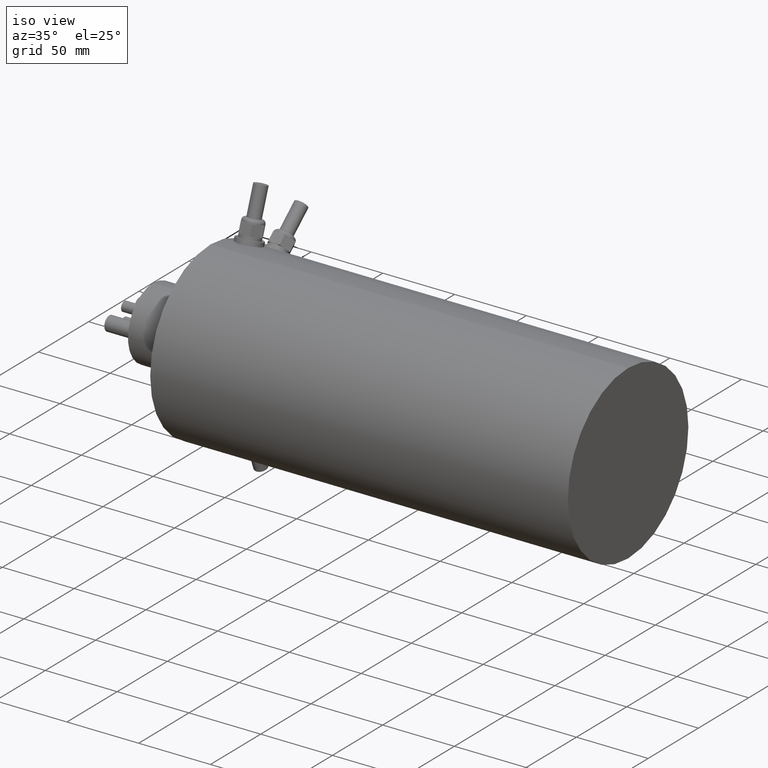
[diagram: clean part render]
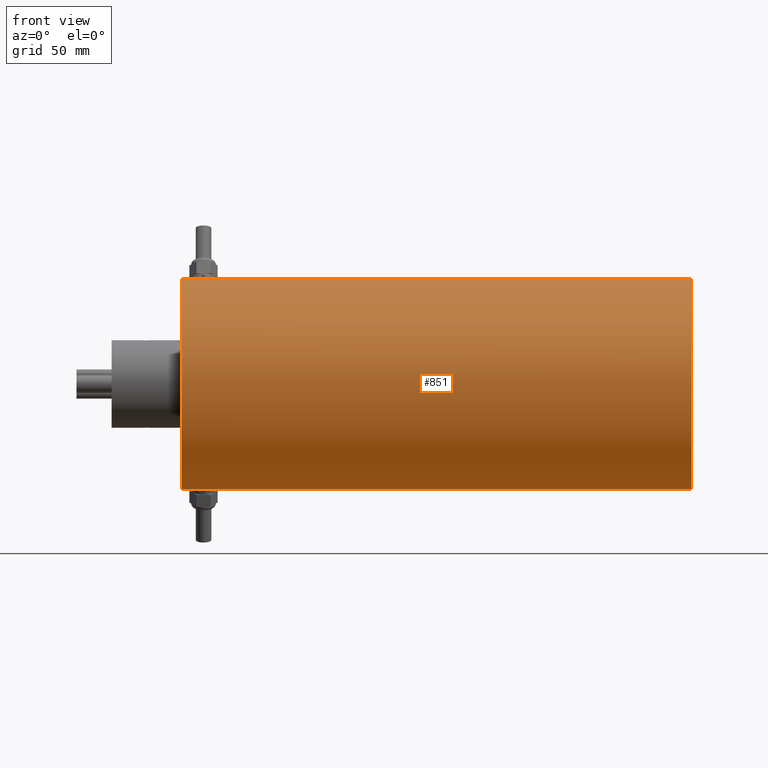
[diagram: tour spotlight — one face highlighted and labeled with its STEP entity id]
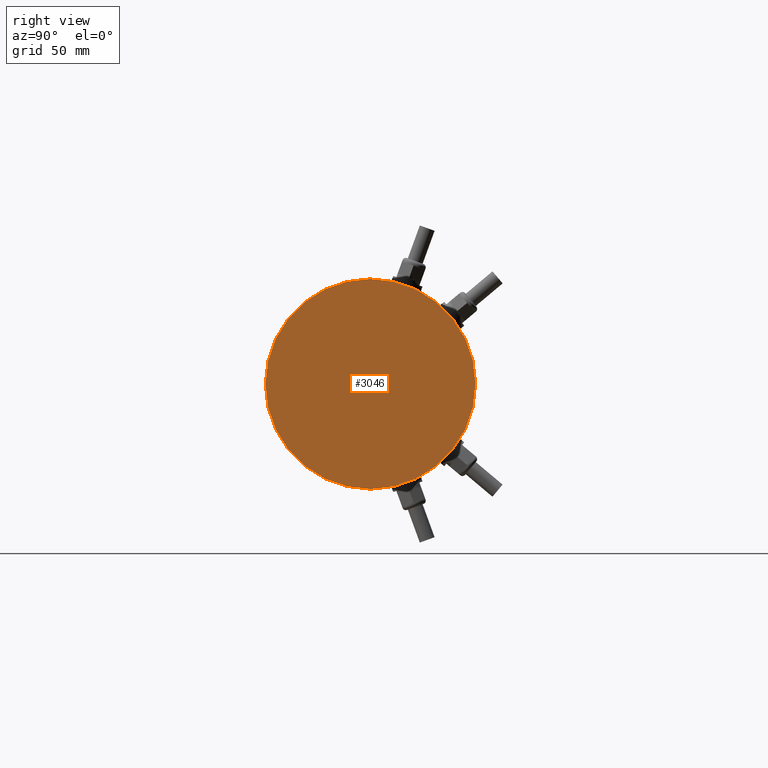
[diagram: tour spotlight — one face highlighted and labeled with its STEP entity id]
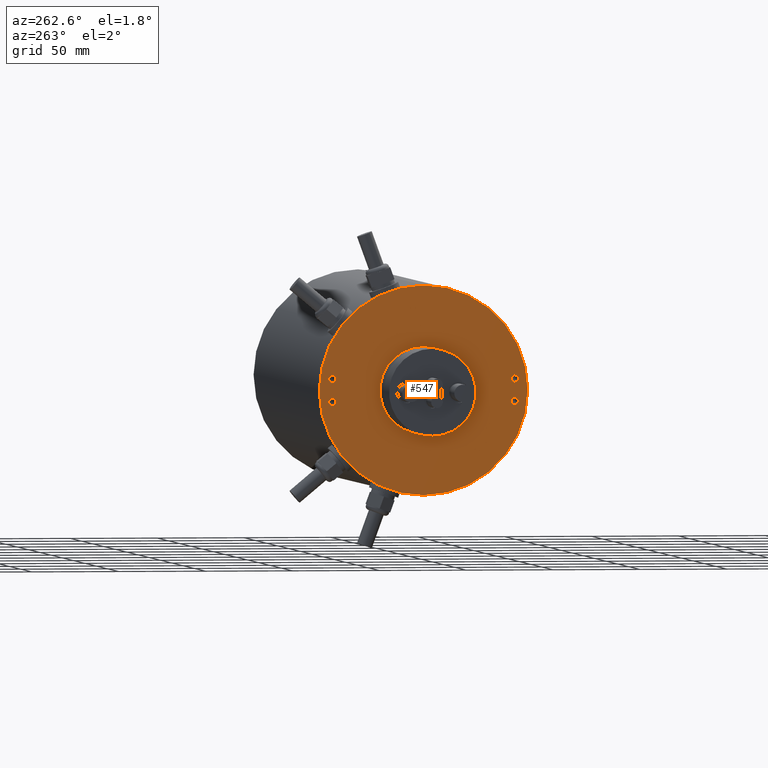
[diagram: tour spotlight — one face highlighted and labeled with its STEP entity id]
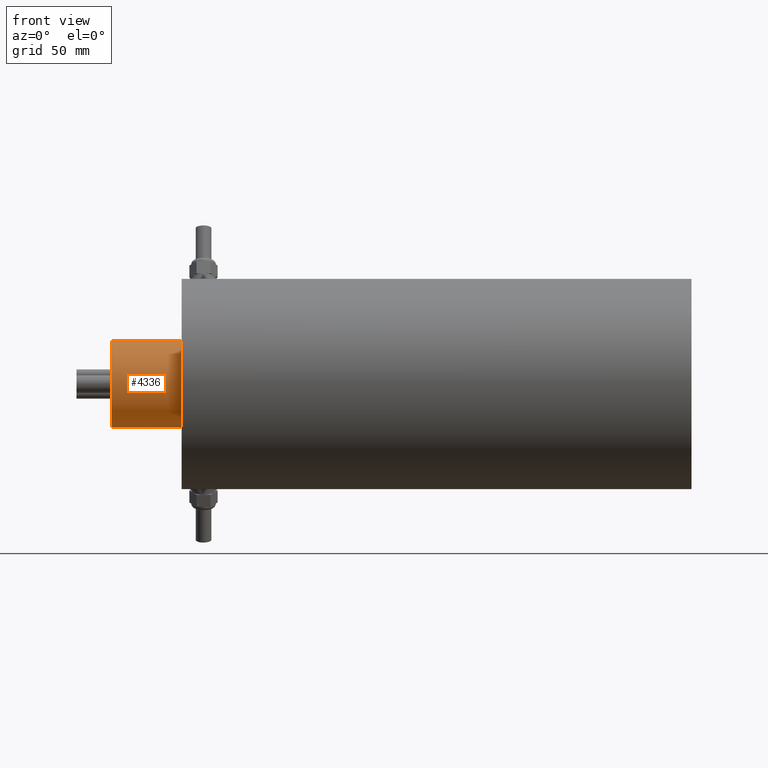
[diagram: tour spotlight — one face highlighted and labeled with its STEP entity id]
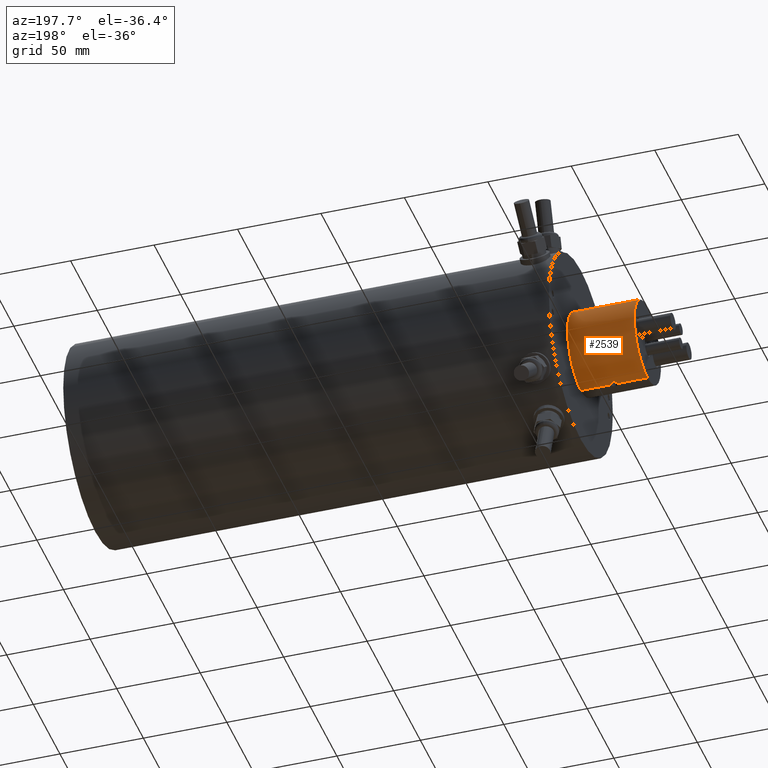
[diagram: tour spotlight — one face highlighted and labeled with its STEP entity id]
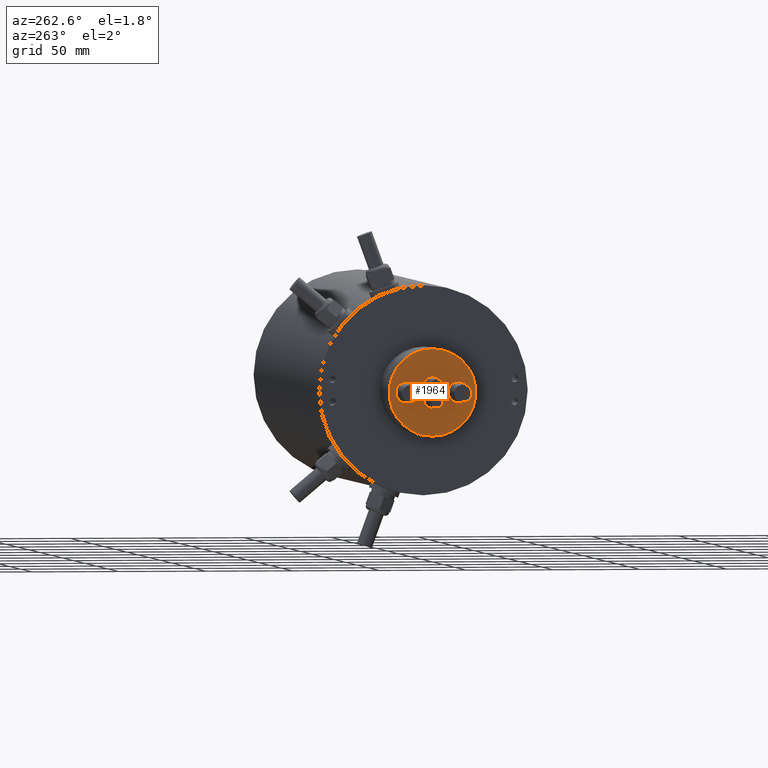
[diagram: tour spotlight — one face highlighted and labeled with its STEP entity id]
A machine part: a face-by-face anatomy tour. The part has 181 B-rep faces; the first image is the clean iso view, then the 6 largest visible faces are spotlighted one at a time (largest first), each with its STEP entity span.

Face 1 — front view, entity #851. In plain terms, the highlighted cylindrical surface (partial cylindrical patch) has radius 60 mm, axis along (1, -0, -0).
Definition (entity closure, byte-faithful):
#113 = CIRCLE ( 'NONE', #4523, 60.00000000000000000 ) ;
#157 = EDGE_CURVE ( 'NONE', #3726, #1540, #2169, .T. ) ;
#312 = EDGE_CURVE ( 'NONE', #1154, #3726, #113, .T. ) ;
#361 = DIRECTION ( 'NONE',  ( 1.000000000000000000, -0.0000000000000000000, -0.0000000000000000000 ) ) ;
#813 = CARTESIAN_POINT ( 'NONE',  ( 39.99999999999997900, 0.0000000000000000000, -60.00000000000000000 ) ) ;
#851 = ADVANCED_FACE ( 'NONE', ( #1674 ), #3761, .T. ) ;
#947 = CARTESIAN_POINT ( 'NONE',  ( 330.9999999999999400, 7.347880794884118400E-015, 60.00000000000000000 ) ) ;
#972 = VERTEX_POINT ( 'NONE', #947 ) ;
#982 = CARTESIAN_POINT ( 'NONE',  ( 330.9999999999999400, 0.0000000000000000000, 0.0000000000000000000 ) ) ;
#1064 = AXIS2_PLACEMENT_3D ( 'NONE', #982, #3746, #1401 ) ;
#1077 = CARTESIAN_POINT ( 'NONE',  ( 330.9999999999999400, 0.0000000000000000000, -60.00000000000000000 ) ) ;
#1123 = CARTESIAN_POINT ( 'NONE',  ( 330.9999999999999400, 0.0000000000000000000, -60.00000000000000000 ) ) ;
#1154 = VERTEX_POINT ( 'NONE', #2647 ) ;
#1401 = DIRECTION ( 'NONE',  ( 0.0000000000000000000, 0.0000000000000000000, -1.000000000000000000 ) ) ;
#1540 = VERTEX_POINT ( 'NONE', #1123 ) ;
#1611 = ORIENTED_EDGE ( 'NONE', *, *, #2820, .F. ) ;
#1674 = FACE_OUTER_BOUND ( 'NONE', #4491, .T. ) ;
#2169 = LINE ( 'NONE', #1077, #2213 ) ;
#2213 = VECTOR ( 'NONE', #4577, 1000.000000000000000 ) ;
#2420 = ORIENTED_EDGE ( 'NONE', *, *, #157, .T. ) ;
#2485 = DIRECTION ( 'NONE',  ( 1.000000000000000000, -0.0000000000000000000, -0.0000000000000000000 ) ) ;
#2647 = CARTESIAN_POINT ( 'NONE',  ( 39.99999999999997900, 7.347880794884118400E-015, 60.00000000000000000 ) ) ;
#2795 = CARTESIAN_POINT ( 'NONE',  ( 39.99999999999997900, 0.0000000000000000000, 0.0000000000000000000 ) ) ;
#2801 = CIRCLE ( 'NONE', #1064, 60.00000000000000000 ) ;
#2820 = EDGE_CURVE ( 'NONE', #972, #1540, #2801, .T. ) ;
#2847 = DIRECTION ( 'NONE',  ( 0.0000000000000000000, 0.0000000000000000000, -1.000000000000000000 ) ) ;
#2862 = DIRECTION ( 'NONE',  ( 1.000000000000000000, -0.0000000000000000000, -0.0000000000000000000 ) ) ;
#2937 = ORIENTED_EDGE ( 'NONE', *, *, #312, .T. ) ;
#3180 = DIRECTION ( 'NONE',  ( 0.0000000000000000000, 0.0000000000000000000, -1.000000000000000000 ) ) ;
#3295 = LINE ( 'NONE', #3655, #3858 ) ;
#3413 = AXIS2_PLACEMENT_3D ( 'NONE', #4765, #2862, #2847 ) ;
#3422 = ORIENTED_EDGE ( 'NONE', *, *, #4614, .F. ) ;
#3655 = CARTESIAN_POINT ( 'NONE',  ( 330.9999999999999400, 7.347880794884118400E-015, 60.00000000000000000 ) ) ;
#3726 = VERTEX_POINT ( 'NONE', #813 ) ;
#3746 = DIRECTION ( 'NONE',  ( 1.000000000000000000, -0.0000000000000000000, -0.0000000000000000000 ) ) ;
#3761 = CYLINDRICAL_SURFACE ( 'NONE', #3413, 60.00000000000000000 ) ;
#3858 = VECTOR ( 'NONE', #2485, 1000.000000000000000 ) ;
#4491 = EDGE_LOOP ( 'NONE', ( #3422, #2937, #2420, #1611 ) ) ;
#4523 = AXIS2_PLACEMENT_3D ( 'NONE', #2795, #361, #3180 ) ;
#4577 = DIRECTION ( 'NONE',  ( 1.000000000000000000, -0.0000000000000000000, -0.0000000000000000000 ) ) ;
#4614 = EDGE_CURVE ( 'NONE', #1154, #972, #3295, .T. ) ;
#4765 = CARTESIAN_POINT ( 'NONE',  ( 330.9999999999999400, 0.0000000000000000000, 0.0000000000000000000 ) ) ;

Face 2 — right view, entity #3046. In plain terms, the highlighted planar face has unit normal (1, 0, -0).
Definition (entity closure, byte-faithful):
#637 = DIRECTION ( 'NONE',  ( 1.000000000000000000, -0.0000000000000000000, -0.0000000000000000000 ) ) ;
#947 = CARTESIAN_POINT ( 'NONE',  ( 330.9999999999999400, 7.347880794884118400E-015, 60.00000000000000000 ) ) ;
#972 = VERTEX_POINT ( 'NONE', #947 ) ;
#982 = CARTESIAN_POINT ( 'NONE',  ( 330.9999999999999400, 0.0000000000000000000, 0.0000000000000000000 ) ) ;
#1064 = AXIS2_PLACEMENT_3D ( 'NONE', #982, #3746, #1401 ) ;
#1123 = CARTESIAN_POINT ( 'NONE',  ( 330.9999999999999400, 0.0000000000000000000, -60.00000000000000000 ) ) ;
#1401 = DIRECTION ( 'NONE',  ( 0.0000000000000000000, 0.0000000000000000000, -1.000000000000000000 ) ) ;
#1540 = VERTEX_POINT ( 'NONE', #1123 ) ;
#2003 = CARTESIAN_POINT ( 'NONE',  ( 330.9999999999999400, 60.00000000000000000, 0.0000000000000000000 ) ) ;
#2742 = ORIENTED_EDGE ( 'NONE', *, *, #2820, .T. ) ;
#2792 = DIRECTION ( 'NONE',  ( -0.0000000000000000000, 0.0000000000000000000, -1.000000000000000000 ) ) ;
#2801 = CIRCLE ( 'NONE', #1064, 60.00000000000000000 ) ;
#2820 = EDGE_CURVE ( 'NONE', #972, #1540, #2801, .T. ) ;
#2902 = EDGE_CURVE ( 'NONE', #1540, #972, #3010, .T. ) ;
#2939 = ORIENTED_EDGE ( 'NONE', *, *, #2902, .T. ) ;
#3010 = CIRCLE ( 'NONE', #3974, 60.00000000000000000 ) ;
#3046 = ADVANCED_FACE ( 'NONE', ( #3293 ), #4691, .T. ) ;
#3057 = CARTESIAN_POINT ( 'NONE',  ( 330.9999999999999400, 0.0000000000000000000, 0.0000000000000000000 ) ) ;
#3293 = FACE_OUTER_BOUND ( 'NONE', #5102, .T. ) ;
#3419 = DIRECTION ( 'NONE',  ( 0.0000000000000000000, 0.0000000000000000000, -1.000000000000000000 ) ) ;
#3746 = DIRECTION ( 'NONE',  ( 1.000000000000000000, -0.0000000000000000000, -0.0000000000000000000 ) ) ;
#3873 = AXIS2_PLACEMENT_3D ( 'NONE', #2003, #5100, #2792 ) ;
#3974 = AXIS2_PLACEMENT_3D ( 'NONE', #3057, #637, #3419 ) ;
#4691 = PLANE ( 'NONE',  #3873 ) ;
#5100 = DIRECTION ( 'NONE',  ( 1.000000000000000000, 0.0000000000000000000, -0.0000000000000000000 ) ) ;
#5102 = EDGE_LOOP ( 'NONE', ( #2939, #2742 ) ) ;

Face 3 — auxiliary view, entity #547. In plain terms, the highlighted planar face has unit normal (-1, 0, 0).
Definition (entity closure, byte-faithful):
#11 = DIRECTION ( 'NONE',  ( -1.000000000000000000, -0.0000000000000000000, -0.0000000000000000000 ) ) ;
#113 = CIRCLE ( 'NONE', #4523, 60.00000000000000000 ) ;
#126 = CARTESIAN_POINT ( 'NONE',  ( 40.00000000000000000, 25.00000000000000000, 0.0000000000000000000 ) ) ;
#161 = DIRECTION ( 'NONE',  ( -1.000000000000000000, -0.0000000000000000000, -0.0000000000000000000 ) ) ;
#188 = CARTESIAN_POINT ( 'NONE',  ( 40.00000000000000000, -52.50000000000000000, -8.599999999999996100 ) ) ;
#295 = ORIENTED_EDGE ( 'NONE', *, *, #457, .T. ) ;
#312 = EDGE_CURVE ( 'NONE', #1154, #3726, #113, .T. ) ;
#314 = CARTESIAN_POINT ( 'NONE',  ( 40.00000000000000000, -52.50000000000000000, 8.599999999999983700 ) ) ;
#350 = DIRECTION ( 'NONE',  ( 0.0000000000000000000, 0.0000000000000000000, 1.000000000000000000 ) ) ;
#361 = DIRECTION ( 'NONE',  ( 1.000000000000000000, -0.0000000000000000000, -0.0000000000000000000 ) ) ;
#362 = VERTEX_POINT ( 'NONE', #2422 ) ;
#399 = CARTESIAN_POINT ( 'NONE',  ( 40.00000000000000000, 52.50000000000000000, -6.500000000000005300 ) ) ;
#410 = AXIS2_PLACEMENT_3D ( 'NONE', #3242, #862, #3632 ) ;
#426 = ORIENTED_EDGE ( 'NONE', *, *, #2836, .F. ) ;
#457 = EDGE_CURVE ( 'NONE', #1165, #2437, #2082, .T. ) ;
#504 = CARTESIAN_POINT ( 'NONE',  ( 39.99999999999997900, 3.061616997868383000E-015, 25.00000000000000000 ) ) ;
#520 = CIRCLE ( 'NONE', #4027, 2.099999999999990800 ) ;
#530 = ORIENTED_EDGE ( 'NONE', *, *, #1977, .F. ) ;
#547 = ADVANCED_FACE ( 'NONE', ( #953, #1139, #4306, #780, #3625, #602 ), #4857, .T. ) ;
#579 = DIRECTION ( 'NONE',  ( -1.000000000000000000, -0.0000000000000000000, -0.0000000000000000000 ) ) ;
#602 = FACE_OUTER_BOUND ( 'NONE', #3217, .T. ) ;
#628 = CIRCLE ( 'NONE', #1030, 2.099999999999990800 ) ;
#636 = VERTEX_POINT ( 'NONE', #2343 ) ;
#751 = CARTESIAN_POINT ( 'NONE',  ( 40.00000000000000000, -52.50000000000000000, -4.400000000000014600 ) ) ;
#780 = FACE_BOUND ( 'NONE', #2786, .T. ) ;
#813 = CARTESIAN_POINT ( 'NONE',  ( 39.99999999999997900, 0.0000000000000000000, -60.00000000000000000 ) ) ;
#818 = DIRECTION ( 'NONE',  ( 0.0000000000000000000, 0.0000000000000000000, 1.000000000000000000 ) ) ;
#849 = EDGE_CURVE ( 'NONE', #2437, #1165, #3371, .T. ) ;
#862 = DIRECTION ( 'NONE',  ( 1.000000000000000000, -0.0000000000000000000, -0.0000000000000000000 ) ) ;
#953 = FACE_BOUND ( 'NONE', #5116, .T. ) ;
#963 = DIRECTION ( 'NONE',  ( -1.000000000000000000, 0.0000000000000000000, 0.0000000000000000000 ) ) ;
#1007 = CARTESIAN_POINT ( 'NONE',  ( 40.00000000000000000, 52.50000000000000000, 6.499999999999993800 ) ) ;
#1030 = AXIS2_PLACEMENT_3D ( 'NONE', #3570, #1216, #3965 ) ;
#1080 = VERTEX_POINT ( 'NONE', #188 ) ;
#1137 = ORIENTED_EDGE ( 'NONE', *, *, #849, .T. ) ;
#1139 = FACE_BOUND ( 'NONE', #2706, .T. ) ;
#1144 = AXIS2_PLACEMENT_3D ( 'NONE', #5095, #2784, #350 ) ;
#1145 = CIRCLE ( 'NONE', #3080, 2.099999999999990800 ) ;
#1154 = VERTEX_POINT ( 'NONE', #2647 ) ;
#1165 = VERTEX_POINT ( 'NONE', #3056 ) ;
#1216 = DIRECTION ( 'NONE',  ( -1.000000000000000000, -0.0000000000000000000, -0.0000000000000000000 ) ) ;
#1426 = DIRECTION ( 'NONE',  ( 0.0000000000000000000, 0.0000000000000000000, 1.000000000000000000 ) ) ;
#1578 = EDGE_CURVE ( 'NONE', #3323, #3646, #520, .T. ) ;
#1628 = AXIS2_PLACEMENT_3D ( 'NONE', #3003, #579, #3365 ) ;
#1654 = EDGE_CURVE ( 'NONE', #362, #3452, #628, .T. ) ;
#1779 = AXIS2_PLACEMENT_3D ( 'NONE', #2124, #4805, #2504 ) ;
#1828 = ORIENTED_EDGE ( 'NONE', *, *, #1654, .F. ) ;
#1833 = CIRCLE ( 'NONE', #4505, 2.099999999999990800 ) ;
#1865 = CIRCLE ( 'NONE', #1144, 2.099999999999990800 ) ;
#1963 = DIRECTION ( 'NONE',  ( 1.000000000000000000, -0.0000000000000000000, -0.0000000000000000000 ) ) ;
#1977 = EDGE_CURVE ( 'NONE', #3452, #362, #1145, .T. ) ;
#2082 = CIRCLE ( 'NONE', #1779, 25.00000000000000000 ) ;
#2123 = CARTESIAN_POINT ( 'NONE',  ( 40.00000000000000000, 52.50000000000000000, -4.400000000000014600 ) ) ;
#2124 = CARTESIAN_POINT ( 'NONE',  ( 39.99999999999997900, 0.0000000000000000000, 0.0000000000000000000 ) ) ;
#2167 = ORIENTED_EDGE ( 'NONE', *, *, #3102, .F. ) ;
#2206 = EDGE_LOOP ( 'NONE', ( #295, #1137 ) ) ;
#2277 = EDGE_CURVE ( 'NONE', #2592, #1080, #1833, .T. ) ;
#2343 = CARTESIAN_POINT ( 'NONE',  ( 40.00000000000000000, 52.50000000000000000, -8.599999999999996100 ) ) ;
#2350 = CARTESIAN_POINT ( 'NONE',  ( 40.00000000000000000, -52.50000000000000000, 6.499999999999993800 ) ) ;
#2422 = CARTESIAN_POINT ( 'NONE',  ( 40.00000000000000000, 52.50000000000000000, 4.400000000000003000 ) ) ;
#2437 = VERTEX_POINT ( 'NONE', #504 ) ;
#2441 = CARTESIAN_POINT ( 'NONE',  ( 40.00000000000000000, -52.50000000000000000, -6.500000000000005300 ) ) ;
#2447 = EDGE_LOOP ( 'NONE', ( #3024, #2167 ) ) ;
#2504 = DIRECTION ( 'NONE',  ( 0.0000000000000000000, 0.0000000000000000000, -1.000000000000000000 ) ) ;
#2533 = CARTESIAN_POINT ( 'NONE',  ( 40.00000000000000000, -52.50000000000000000, 4.400000000000003000 ) ) ;
#2592 = VERTEX_POINT ( 'NONE', #751 ) ;
#2593 = CARTESIAN_POINT ( 'NONE',  ( 40.00000000000000000, 52.50000000000000000, -6.500000000000005300 ) ) ;
#2647 = CARTESIAN_POINT ( 'NONE',  ( 39.99999999999997900, 7.347880794884118400E-015, 60.00000000000000000 ) ) ;
#2706 = EDGE_LOOP ( 'NONE', ( #426, #3311 ) ) ;
#2753 = DIRECTION ( 'NONE',  ( 0.0000000000000000000, 0.0000000000000000000, 1.000000000000000000 ) ) ;
#2784 = DIRECTION ( 'NONE',  ( -1.000000000000000000, -0.0000000000000000000, -0.0000000000000000000 ) ) ;
#2786 = EDGE_LOOP ( 'NONE', ( #530, #1828 ) ) ;
#2795 = CARTESIAN_POINT ( 'NONE',  ( 39.99999999999997900, 0.0000000000000000000, 0.0000000000000000000 ) ) ;
#2836 = EDGE_CURVE ( 'NONE', #3646, #3323, #2849, .T. ) ;
#2846 = DIRECTION ( 'NONE',  ( 0.0000000000000000000, 0.0000000000000000000, 1.000000000000000000 ) ) ;
#2849 = CIRCLE ( 'NONE', #1628, 2.099999999999990800 ) ;
#2995 = DIRECTION ( 'NONE',  ( 0.0000000000000000000, 0.0000000000000000000, 1.000000000000000000 ) ) ;
#2998 = ORIENTED_EDGE ( 'NONE', *, *, #2277, .F. ) ;
#3003 = CARTESIAN_POINT ( 'NONE',  ( 40.00000000000000000, -52.50000000000000000, 6.499999999999993800 ) ) ;
#3024 = ORIENTED_EDGE ( 'NONE', *, *, #3372, .F. ) ;
#3056 = CARTESIAN_POINT ( 'NONE',  ( 39.99999999999997900, 0.0000000000000000000, -25.00000000000000000 ) ) ;
#3080 = AXIS2_PLACEMENT_3D ( 'NONE', #1007, #3767, #1426 ) ;
#3102 = EDGE_CURVE ( 'NONE', #636, #4640, #3404, .T. ) ;
#3180 = DIRECTION ( 'NONE',  ( 0.0000000000000000000, 0.0000000000000000000, -1.000000000000000000 ) ) ;
#3212 = DIRECTION ( 'NONE',  ( -1.000000000000000000, -0.0000000000000000000, -0.0000000000000000000 ) ) ;
#3217 = EDGE_LOOP ( 'NONE', ( #3953, #4419 ) ) ;
#3242 = CARTESIAN_POINT ( 'NONE',  ( 39.99999999999997900, 0.0000000000000000000, 0.0000000000000000000 ) ) ;
#3311 = ORIENTED_EDGE ( 'NONE', *, *, #1578, .F. ) ;
#3323 = VERTEX_POINT ( 'NONE', #2533 ) ;
#3365 = DIRECTION ( 'NONE',  ( 0.0000000000000000000, 0.0000000000000000000, 1.000000000000000000 ) ) ;
#3371 = CIRCLE ( 'NONE', #410, 25.00000000000000000 ) ;
#3372 = EDGE_CURVE ( 'NONE', #4640, #636, #3906, .T. ) ;
#3404 = CIRCLE ( 'NONE', #4626, 2.099999999999990800 ) ;
#3452 = VERTEX_POINT ( 'NONE', #4924 ) ;
#3570 = CARTESIAN_POINT ( 'NONE',  ( 40.00000000000000000, 52.50000000000000000, 6.499999999999993800 ) ) ;
#3625 = FACE_BOUND ( 'NONE', #2206, .T. ) ;
#3632 = DIRECTION ( 'NONE',  ( 0.0000000000000000000, 0.0000000000000000000, -1.000000000000000000 ) ) ;
#3646 = VERTEX_POINT ( 'NONE', #314 ) ;
#3721 = DIRECTION ( 'NONE',  ( 0.0000000000000000000, 0.0000000000000000000, 1.000000000000000000 ) ) ;
#3726 = VERTEX_POINT ( 'NONE', #813 ) ;
#3767 = DIRECTION ( 'NONE',  ( -1.000000000000000000, -0.0000000000000000000, -0.0000000000000000000 ) ) ;
#3906 = CIRCLE ( 'NONE', #4036, 2.099999999999990800 ) ;
#3953 = ORIENTED_EDGE ( 'NONE', *, *, #4886, .F. ) ;
#3965 = DIRECTION ( 'NONE',  ( 0.0000000000000000000, 0.0000000000000000000, 1.000000000000000000 ) ) ;
#4017 = CIRCLE ( 'NONE', #4390, 60.00000000000000000 ) ;
#4027 = AXIS2_PLACEMENT_3D ( 'NONE', #2350, #5060, #2753 ) ;
#4036 = AXIS2_PLACEMENT_3D ( 'NONE', #2593, #161, #2995 ) ;
#4277 = CARTESIAN_POINT ( 'NONE',  ( 39.99999999999997900, 0.0000000000000000000, 0.0000000000000000000 ) ) ;
#4306 = FACE_BOUND ( 'NONE', #2447, .T. ) ;
#4390 = AXIS2_PLACEMENT_3D ( 'NONE', #4277, #1963, #4648 ) ;
#4419 = ORIENTED_EDGE ( 'NONE', *, *, #312, .F. ) ;
#4505 = AXIS2_PLACEMENT_3D ( 'NONE', #2441, #11, #2846 ) ;
#4523 = AXIS2_PLACEMENT_3D ( 'NONE', #2795, #361, #3180 ) ;
#4549 = ORIENTED_EDGE ( 'NONE', *, *, #4955, .F. ) ;
#4626 = AXIS2_PLACEMENT_3D ( 'NONE', #399, #3212, #818 ) ;
#4640 = VERTEX_POINT ( 'NONE', #2123 ) ;
#4648 = DIRECTION ( 'NONE',  ( 0.0000000000000000000, 0.0000000000000000000, -1.000000000000000000 ) ) ;
#4805 = DIRECTION ( 'NONE',  ( 1.000000000000000000, -0.0000000000000000000, -0.0000000000000000000 ) ) ;
#4857 = PLANE ( 'NONE',  #4928 ) ;
#4886 = EDGE_CURVE ( 'NONE', #3726, #1154, #4017, .T. ) ;
#4924 = CARTESIAN_POINT ( 'NONE',  ( 40.00000000000000000, 52.50000000000000000, 8.599999999999983700 ) ) ;
#4928 = AXIS2_PLACEMENT_3D ( 'NONE', #126, #963, #3721 ) ;
#4955 = EDGE_CURVE ( 'NONE', #1080, #2592, #1865, .T. ) ;
#5060 = DIRECTION ( 'NONE',  ( -1.000000000000000000, -0.0000000000000000000, -0.0000000000000000000 ) ) ;
#5095 = CARTESIAN_POINT ( 'NONE',  ( 40.00000000000000000, -52.50000000000000000, -6.500000000000005300 ) ) ;
#5116 = EDGE_LOOP ( 'NONE', ( #2998, #4549 ) ) ;

Face 4 — front view, entity #4336. In plain terms, the highlighted cylindrical surface (partial cylindrical patch) has radius 25 mm, axis along (1, -0, -0).
Definition (entity closure, byte-faithful):
#100 = ORIENTED_EDGE ( 'NONE', *, *, #3549, .F. ) ;
#150 = CARTESIAN_POINT ( 'NONE',  ( 0.0000000000000000000, 0.0000000000000000000, -25.00000000000000000 ) ) ;
#172 = CARTESIAN_POINT ( 'NONE',  ( 20.54379959606333400, -2.032985697348363100, -24.91721667758114500 ) ) ;
#206 = CARTESIAN_POINT ( 'NONE',  ( 21.83552538487864300, -1.056271334344038000, 24.97895635085391700 ) ) ;
#268 = CARTESIAN_POINT ( 'NONE',  ( 19.06827259928067500, -1.886945803691847400, 24.92874245935940200 ) ) ;
#334 = AXIS2_PLACEMENT_3D ( 'NONE', #4495, #4883, #1803 ) ;
#336 = CARTESIAN_POINT ( 'NONE',  ( 18.33183907830632400, -1.283063231241049300, -24.96731670103894300 ) ) ;
#366 = CARTESIAN_POINT ( 'NONE',  ( 0.0000000000000000000, 3.061616997868383000E-015, 25.00000000000000000 ) ) ;
#410 = AXIS2_PLACEMENT_3D ( 'NONE', #3242, #862, #3632 ) ;
#477 = B_SPLINE_CURVE_WITH_KNOTS ( 'NONE', 3,
 ( #2987, #2582, #3748, #1402, #4133, #1823, #4520, #2210, #4902, #2603, #172, #3004, #580, #3366 ),
 .UNSPECIFIED., .F., .F.,
 ( 4, 2, 2, 2, 2, 2, 4 ),
 ( 0.006568449684915093900, 0.007389724704930564700, 0.008210999724946035600, 0.008621637234953774900, 0.009032274744961514200, 0.009442912254969253500, 0.009853549764976992900 ),
 .UNSPECIFIED. ) ;
#504 = CARTESIAN_POINT ( 'NONE',  ( 39.99999999999997900, 3.061616997868383000E-015, 25.00000000000000000 ) ) ;
#542 = CYLINDRICAL_SURFACE ( 'NONE', #334, 25.00000000000000000 ) ;
#551 = VERTEX_POINT ( 'NONE', #2556 ) ;
#580 = CARTESIAN_POINT ( 'NONE',  ( 20.13873264595224600, -2.100000000000011200, -24.91164386386413900 ) ) ;
#615 = CARTESIAN_POINT ( 'NONE',  ( 17.89999999999999900, 3.061616997863408900E-015, 25.00000000000000000 ) ) ;
#622 = CARTESIAN_POINT ( 'NONE',  ( 22.09999999999999800, -0.2741417733779815100, 24.99999999999999600 ) ) ;
#648 = EDGE_CURVE ( 'NONE', #4001, #1862, #2827, .T. ) ;
#669 = LINE ( 'NONE', #981, #3202 ) ;
#683 = CARTESIAN_POINT ( 'NONE',  ( 19.72256730894927700, -2.100000000000012100, 24.91164386386415300 ) ) ;
#687 = VERTEX_POINT ( 'NONE', #3544 ) ;
#765 = CARTESIAN_POINT ( 'NONE',  ( 18.11305462455688800, -0.9317283103195176400, -24.98295080568769000 ) ) ;
#770 = CIRCLE ( 'NONE', #2370, 25.00000000000000000 ) ;
#832 = EDGE_CURVE ( 'NONE', #4339, #687, #1316, .T. ) ;
#849 = EDGE_CURVE ( 'NONE', #2437, #1165, #3371, .T. ) ;
#862 = DIRECTION ( 'NONE',  ( 1.000000000000000000, -0.0000000000000000000, -0.0000000000000000000 ) ) ;
#975 = CARTESIAN_POINT ( 'NONE',  ( 330.9999999999999400, 3.061616997868383000E-015, 25.00000000000000000 ) ) ;
#981 = CARTESIAN_POINT ( 'NONE',  ( 330.9999999999999400, 0.0000000000000000000, -25.00000000000000000 ) ) ;
#984 = FACE_OUTER_BOUND ( 'NONE', #3029, .T. ) ;
#1026 = EDGE_CURVE ( 'NONE', #4022, #1165, #669, .T. ) ;
#1048 = VERTEX_POINT ( 'NONE', #1421 ) ;
#1083 = CARTESIAN_POINT ( 'NONE',  ( 17.96695858283034400, -0.5435504855679019800, 24.99445041009556700 ) ) ;
#1100 = ORIENTED_EDGE ( 'NONE', *, *, #832, .T. ) ;
#1152 = CARTESIAN_POINT ( 'NONE',  ( 330.9999999999999400, 3.061616997868383000E-015, 25.00000000000000000 ) ) ;
#1165 = VERTEX_POINT ( 'NONE', #3056 ) ;
#1172 = ORIENTED_EDGE ( 'NONE', *, *, #1026, .T. ) ;
#1178 = CARTESIAN_POINT ( 'NONE',  ( 17.90000000000002000, -0.2774325924719739400, -25.00000000000000000 ) ) ;
#1287 = CARTESIAN_POINT ( 'NONE',  ( 0.0000000000000000000, 0.0000000000000000000, 0.0000000000000000000 ) ) ;
#1316 = LINE ( 'NONE', #1678, #2330 ) ;
#1402 = CARTESIAN_POINT ( 'NONE',  ( 21.83546398476283900, -1.056391209257582500, -24.97895171608399800 ) ) ;
#1421 = CARTESIAN_POINT ( 'NONE',  ( 22.10000000000000100, 3.061616963281718900E-015, 25.00000000000000000 ) ) ;
#1439 = CARTESIAN_POINT ( 'NONE',  ( 20.54392650853131700, -2.032950666282249400, 24.91721954251793000 ) ) ;
#1495 = CARTESIAN_POINT ( 'NONE',  ( 18.11264967729149700, -0.9310488704934833900, 24.98298084665819700 ) ) ;
#1568 = DIRECTION ( 'NONE',  ( 1.000000000000000000, -0.0000000000000000000, -0.0000000000000000000 ) ) ;
#1577 = CARTESIAN_POINT ( 'NONE',  ( 19.45644961455065000, -2.033041436123643300, -24.91721208932907300 ) ) ;
#1616 = EDGE_CURVE ( 'NONE', #551, #687, #1722, .T. ) ;
#1678 = CARTESIAN_POINT ( 'NONE',  ( 330.9999999999999400, 0.0000000000000000000, -25.00000000000000000 ) ) ;
#1707 = DIRECTION ( 'NONE',  ( 0.0000000000000000000, 0.0000000000000000000, -1.000000000000000000 ) ) ;
#1722 = B_SPLINE_CURVE_WITH_KNOTS ( 'NONE', 3,
 ( #3521, #4651, #3912, #1577, #4296, #1985, #4670, #2363, #5079, #2769, #336, #3156, #765, #3536, #1178, #3928 ),
 .UNSPECIFIED., .F., .F.,
 ( 4, 2, 2, 2, 2, 2, 2, 4 ),
 ( 0.009853549764976992900, 0.01026377803438944000, 0.01067400630380189000, 0.01108423457321433700, 0.01149446284262678600, 0.01190469111203923400, 0.01231491938145168300, 0.01313537592027658400 ),
 .UNSPECIFIED. ) ;
#1723 = EDGE_CURVE ( 'NONE', #4001, #4339, #770, .T. ) ;
#1803 = DIRECTION ( 'NONE',  ( 0.0000000000000000000, 0.0000000000000000000, -1.000000000000000000 ) ) ;
#1814 = ORIENTED_EDGE ( 'NONE', *, *, #4345, .F. ) ;
#1823 = CARTESIAN_POINT ( 'NONE',  ( 21.38856051829204600, -1.581346426371213800, -24.95012546612566600 ) ) ;
#1852 = CARTESIAN_POINT ( 'NONE',  ( 20.93172108301149200, -1.887022018483844400, 24.92873737518967300 ) ) ;
#1862 = VERTEX_POINT ( 'NONE', #615 ) ;
#1908 = CARTESIAN_POINT ( 'NONE',  ( 18.32927531714786400, -1.279636326881470600, 24.96749006890942400 ) ) ;
#1945 = B_SPLINE_CURVE_WITH_KNOTS ( 'NONE', 3,
 ( #2618, #4917, #3778, #1439, #4173, #1852, #4546, #2248, #4937, #2630, #206, #3042, #622, #3403 ),
 .UNSPECIFIED., .F., .F.,
 ( 4, 2, 2, 2, 2, 2, 4 ),
 ( 0.0000000000000000000, 0.0004106225027895755200, 0.0008212450055791510300, 0.001231867508368726700, 0.001642490011158302100, 0.002463735016737460300, 0.003284980022316618900 ),
 .UNSPECIFIED. ) ;
#1985 = CARTESIAN_POINT ( 'NONE',  ( 19.06895198756543400, -1.887350724747055600, -24.92871236214371700 ) ) ;
#2074 = ORIENTED_EDGE ( 'NONE', *, *, #1723, .T. ) ;
#2210 = CARTESIAN_POINT ( 'NONE',  ( 21.05219744929090800, -1.822561832800851000, -24.93359404864344600 ) ) ;
#2248 = CARTESIAN_POINT ( 'NONE',  ( 21.28062619075032900, -1.669981447930361400, 24.94427797982038100 ) ) ;
#2299 = CARTESIAN_POINT ( 'NONE',  ( 18.61137686094846100, -1.581285088314549300, 24.95012915419653900 ) ) ;
#2330 = VECTOR ( 'NONE', #4368, 1000.000000000000000 ) ;
#2363 = CARTESIAN_POINT ( 'NONE',  ( 18.72036494269074000, -1.670725640555640500, -24.94422765204830500 ) ) ;
#2370 = AXIS2_PLACEMENT_3D ( 'NONE', #1287, #4026, #1707 ) ;
#2437 = VERTEX_POINT ( 'NONE', #504 ) ;
#2484 = ORIENTED_EDGE ( 'NONE', *, *, #1616, .F. ) ;
#2556 = CARTESIAN_POINT ( 'NONE',  ( 20.00000000000000000, -2.100000000000011600, -24.91164386386413900 ) ) ;
#2572 = DIRECTION ( 'NONE',  ( 1.000000000000000000, -0.0000000000000000000, -0.0000000000000000000 ) ) ;
#2582 = CARTESIAN_POINT ( 'NONE',  ( 22.10000000000000500, -0.2742464419594677300, -25.00000000000001100 ) ) ;
#2587 = VERTEX_POINT ( 'NONE', #3919 ) ;
#2603 = CARTESIAN_POINT ( 'NONE',  ( 20.67734410008203800, -1.992521719971414300, -24.92052674230289000 ) ) ;
#2618 = CARTESIAN_POINT ( 'NONE',  ( 20.00000000000000000, -2.100000000000011600, 24.91164386386414300 ) ) ;
#2630 = CARTESIAN_POINT ( 'NONE',  ( 21.67910589811883400, -1.290599670863360200, 24.96741947104935700 ) ) ;
#2676 = CARTESIAN_POINT ( 'NONE',  ( 17.89999999999999900, -0.1385944883470399100, 25.00000000000000000 ) ) ;
#2693 = CARTESIAN_POINT ( 'NONE',  ( 18.94607337618244400, -1.821606626667998200, 24.93366528252578700 ) ) ;
#2769 = CARTESIAN_POINT ( 'NONE',  ( 18.41871625379589300, -1.388624658211785200, -24.96159284334893900 ) ) ;
#2827 = LINE ( 'NONE', #1152, #4240 ) ;
#2987 = CARTESIAN_POINT ( 'NONE',  ( 22.10000000000000100, -1.204491994659332400E-023, -25.00000000000000000 ) ) ;
#3004 = CARTESIAN_POINT ( 'NONE',  ( 20.27520387473905200, -2.086387230029522800, -24.91280205295102200 ) ) ;
#3029 = EDGE_LOOP ( 'NONE', ( #3468, #2074, #1100, #2484, #1814, #1172, #3357, #4386, #3595, #100 ) ) ;
#3042 = CARTESIAN_POINT ( 'NONE',  ( 22.04489717463306400, -0.5506887646107361300, 24.99521376972305500 ) ) ;
#3056 = CARTESIAN_POINT ( 'NONE',  ( 39.99999999999997900, 0.0000000000000000000, -25.00000000000000000 ) ) ;
#3081 = CARTESIAN_POINT ( 'NONE',  ( 17.89999999999999900, 3.061616997863408900E-015, 25.00000000000000000 ) ) ;
#3096 = CARTESIAN_POINT ( 'NONE',  ( 19.44693848880448800, -2.044222254579936700, 24.91650488448234700 ) ) ;
#3156 = CARTESIAN_POINT ( 'NONE',  ( 18.17839399807608200, -1.053927744099838200, -24.97803816987148600 ) ) ;
#3202 = VECTOR ( 'NONE', #3348, 1000.000000000000000 ) ;
#3242 = CARTESIAN_POINT ( 'NONE',  ( 39.99999999999997900, 0.0000000000000000000, 0.0000000000000000000 ) ) ;
#3348 = DIRECTION ( 'NONE',  ( 1.000000000000000000, -0.0000000000000000000, -0.0000000000000000000 ) ) ;
#3357 = ORIENTED_EDGE ( 'NONE', *, *, #849, .F. ) ;
#3366 = CARTESIAN_POINT ( 'NONE',  ( 20.00000000000000000, -2.100000000000011600, -24.91164386386413900 ) ) ;
#3371 = CIRCLE ( 'NONE', #410, 25.00000000000000000 ) ;
#3403 = CARTESIAN_POINT ( 'NONE',  ( 22.10000000000000100, 3.061616963281718900E-015, 25.00000000000000000 ) ) ;
#3447 = CARTESIAN_POINT ( 'NONE',  ( 17.91363211125611300, -0.2752699894770603300, 24.99884447061465700 ) ) ;
#3465 = CARTESIAN_POINT ( 'NONE',  ( 20.00000000000000000, -2.100000000000011600, 24.91164386386414300 ) ) ;
#3468 = ORIENTED_EDGE ( 'NONE', *, *, #648, .F. ) ;
#3521 = CARTESIAN_POINT ( 'NONE',  ( 20.00000000000000000, -2.100000000000011600, -24.91164386386413900 ) ) ;
#3536 = CARTESIAN_POINT ( 'NONE',  ( 17.95577771271107900, -0.5530616753845477600, -24.99515787503386500 ) ) ;
#3544 = CARTESIAN_POINT ( 'NONE',  ( 17.90000000000002000, 0.0000000000000000000, -25.00000000000000000 ) ) ;
#3549 = EDGE_CURVE ( 'NONE', #1862, #2587, #4471, .T. ) ;
#3595 = ORIENTED_EDGE ( 'NONE', *, *, #4373, .F. ) ;
#3632 = DIRECTION ( 'NONE',  ( 0.0000000000000000000, 0.0000000000000000000, -1.000000000000000000 ) ) ;
#3748 = CARTESIAN_POINT ( 'NONE',  ( 22.04489479357402400, -0.5507228972650519700, -24.99521345201676700 ) ) ;
#3778 = CARTESIAN_POINT ( 'NONE',  ( 20.27536596761440500, -2.086364791233862100, 24.91280393892816000 ) ) ;
#3841 = CARTESIAN_POINT ( 'NONE',  ( 18.00727433967454500, -0.6767478722209306900, 24.99116236394741000 ) ) ;
#3912 = CARTESIAN_POINT ( 'NONE',  ( 19.72472988243565300, -2.086367864230546300, -24.91280363429032000 ) ) ;
#3919 = CARTESIAN_POINT ( 'NONE',  ( 20.00000000000000000, -2.100000000000011600, 24.91164386386414300 ) ) ;
#3928 = CARTESIAN_POINT ( 'NONE',  ( 17.90000000000002000, 0.0000000000000000000, -25.00000000000000000 ) ) ;
#4001 = VERTEX_POINT ( 'NONE', #366 ) ;
#4022 = VERTEX_POINT ( 'NONE', #4338 ) ;
#4026 = DIRECTION ( 'NONE',  ( 1.000000000000000000, -0.0000000000000000000, -0.0000000000000000000 ) ) ;
#4133 = CARTESIAN_POINT ( 'NONE',  ( 21.67899928113189700, -1.290731864712565800, -24.96741236964399500 ) ) ;
#4173 = CARTESIAN_POINT ( 'NONE',  ( 20.67736772578173900, -1.992518315810485300, 24.92052708071362600 ) ) ;
#4228 = CARTESIAN_POINT ( 'NONE',  ( 18.17710503230468800, -1.051591190395379000, 24.97813414645794700 ) ) ;
#4240 = VECTOR ( 'NONE', #1568, 1000.000000000000000 ) ;
#4296 = CARTESIAN_POINT ( 'NONE',  ( 19.32325248030664300, -1.992725759920440200, -24.92051036472667000 ) ) ;
#4336 = ADVANCED_FACE ( 'NONE', ( #984 ), #542, .T. ) ;
#4338 = CARTESIAN_POINT ( 'NONE',  ( 22.10000000000000100, -1.204491994659332400E-023, -25.00000000000000000 ) ) ;
#4339 = VERTEX_POINT ( 'NONE', #150 ) ;
#4345 = EDGE_CURVE ( 'NONE', #4022, #551, #477, .T. ) ;
#4368 = DIRECTION ( 'NONE',  ( 1.000000000000000000, -0.0000000000000000000, -0.0000000000000000000 ) ) ;
#4373 = EDGE_CURVE ( 'NONE', #2587, #1048, #1945, .T. ) ;
#4386 = ORIENTED_EDGE ( 'NONE', *, *, #4758, .F. ) ;
#4450 = LINE ( 'NONE', #975, #5143 ) ;
#4471 = B_SPLINE_CURVE_WITH_KNOTS ( 'NONE', 3,
 ( #3081, #2676, #3447, #1083, #3841, #1495, #4228, #1908, #4598, #2299, #5002, #2693, #268, #3096, #683, #3465 ),
 .UNSPECIFIED., .F., .F.,
 ( 4, 2, 2, 2, 2, 2, 2, 4 ),
 ( 0.009853548294036829800, 0.01026377655699427800, 0.01067400481995172400, 0.01108423308290917100, 0.01149446134586661800, 0.01190468960882406500, 0.01231491787178151300, 0.01313537439769640500 ),
 .UNSPECIFIED. ) ;
#4495 = CARTESIAN_POINT ( 'NONE',  ( 330.9999999999999400, 0.0000000000000000000, 0.0000000000000000000 ) ) ;
#4520 = CARTESIAN_POINT ( 'NONE',  ( 21.28054633686460700, -1.670045563994983800, -24.94427372426607900 ) ) ;
#4546 = CARTESIAN_POINT ( 'NONE',  ( 21.05234558922034800, -1.822473658990925600, 24.93360045667829200 ) ) ;
#4598 = CARTESIAN_POINT ( 'NONE',  ( 18.41785601156010800, -1.387644461913359400, 24.96164758562493800 ) ) ;
#4651 = CARTESIAN_POINT ( 'NONE',  ( 19.86140561475026800, -2.100000000000012500, -24.91164386386414300 ) ) ;
#4670 = CARTESIAN_POINT ( 'NONE',  ( 18.94840988353735900, -1.822895573768017900, -24.93356911977020100 ) ) ;
#4758 = EDGE_CURVE ( 'NONE', #1048, #2437, #4450, .T. ) ;
#4883 = DIRECTION ( 'NONE',  ( 1.000000000000000000, -0.0000000000000000000, -0.0000000000000000000 ) ) ;
#4902 = CARTESIAN_POINT ( 'NONE',  ( 20.93157823659665000, -1.887087656568519500, -24.92873234031001300 ) ) ;
#4917 = CARTESIAN_POINT ( 'NONE',  ( 20.13884965547426400, -2.100000000000011200, 24.91164386386414300 ) ) ;
#4937 = CARTESIAN_POINT ( 'NONE',  ( 21.38865375971619900, -1.581265875021848200, 24.95013063835404700 ) ) ;
#5002 = CARTESIAN_POINT ( 'NONE',  ( 18.71693828713987900, -1.668162063980800400, 24.94440118446718200 ) ) ;
#5079 = CARTESIAN_POINT ( 'NONE',  ( 18.61235692665981700, -1.582145198271663700, -24.95007439448044600 ) ) ;
#5143 = VECTOR ( 'NONE', #2572, 1000.000000000000000 ) ;

Face 5 — auxiliary view, entity #2539. In plain terms, the highlighted cylindrical surface (partial cylindrical patch) has radius 25 mm, axis along (1, -0, -0).
Definition (entity closure, byte-faithful):
#21 = CARTESIAN_POINT ( 'NONE',  ( 21.58294156822293500, 1.386907158509422100, 24.96169325713021400 ) ) ;
#150 = CARTESIAN_POINT ( 'NONE',  ( 0.0000000000000000000, 0.0000000000000000000, -25.00000000000000000 ) ) ;
#256 = ORIENTED_EDGE ( 'NONE', *, *, #2961, .F. ) ;
#275 = CARTESIAN_POINT ( 'NONE',  ( 17.91363520496491900, 0.2753660043687652900, -24.99884416590991500 ) ) ;
#294 = CARTESIAN_POINT ( 'NONE',  ( 21.05347997552370700, 1.821781588144431900, -24.93365034328237300 ) ) ;
#319 = CARTESIAN_POINT ( 'NONE',  ( 18.32995564029475900, 1.280547928818843700, 24.96744402747970800 ) ) ;
#366 = CARTESIAN_POINT ( 'NONE',  ( 0.0000000000000000000, 3.061616997868383000E-015, 25.00000000000000000 ) ) ;
#428 = CARTESIAN_POINT ( 'NONE',  ( 21.28081410163162700, 1.669795327901787400, 24.94428969534676100 ) ) ;
#457 = EDGE_CURVE ( 'NONE', #1165, #2437, #2082, .T. ) ;
#504 = CARTESIAN_POINT ( 'NONE',  ( 39.99999999999997900, 3.061616997868383000E-015, 25.00000000000000000 ) ) ;
#587 = EDGE_CURVE ( 'NONE', #4339, #4001, #4815, .T. ) ;
#615 = CARTESIAN_POINT ( 'NONE',  ( 17.89999999999999900, 3.061616997863408900E-015, 25.00000000000000000 ) ) ;
#648 = EDGE_CURVE ( 'NONE', #4001, #1862, #2827, .T. ) ;
#669 = LINE ( 'NONE', #981, #3202 ) ;
#687 = VERTEX_POINT ( 'NONE', #3544 ) ;
#690 = CARTESIAN_POINT ( 'NONE',  ( 18.00748182613272900, 0.6773682093827111400, -24.99114569314177100 ) ) ;
#698 = CARTESIAN_POINT ( 'NONE',  ( 20.27617285450817500, 2.086284093406952000, -24.91281086378618400 ) ) ;
#717 = CARTESIAN_POINT ( 'NONE',  ( 21.38690565888294500, 1.582942891607408200, -24.95002872898643200 ) ) ;
#746 = CARTESIAN_POINT ( 'NONE',  ( 18.11291290219112700, 0.9315794119632108100, 24.98296090058262600 ) ) ;
#832 = EDGE_CURVE ( 'NONE', #4339, #687, #1316, .T. ) ;
#837 = CARTESIAN_POINT ( 'NONE',  ( 22.10000000000000100, 3.061616963281718900E-015, 25.00000000000000000 ) ) ;
#853 = CARTESIAN_POINT ( 'NONE',  ( 20.93067836185284100, 1.887534536479053900, 24.92869840625929700 ) ) ;
#975 = CARTESIAN_POINT ( 'NONE',  ( 330.9999999999999400, 3.061616997868383000E-015, 25.00000000000000000 ) ) ;
#981 = CARTESIAN_POINT ( 'NONE',  ( 330.9999999999999400, 0.0000000000000000000, -25.00000000000000000 ) ) ;
#1026 = EDGE_CURVE ( 'NONE', #4022, #1165, #669, .T. ) ;
#1048 = VERTEX_POINT ( 'NONE', #1421 ) ;
#1113 = CARTESIAN_POINT ( 'NONE',  ( 18.17752706112151600, 1.052346861689739100, -24.97810286109584900 ) ) ;
#1131 = DIRECTION ( 'NONE',  ( 0.0000000000000000000, 0.0000000000000000000, -1.000000000000000000 ) ) ;
#1132 = CARTESIAN_POINT ( 'NONE',  ( 21.66979415610875000, 1.280815652373621200, -24.96742806512366300 ) ) ;
#1152 = CARTESIAN_POINT ( 'NONE',  ( 330.9999999999999400, 3.061616997868383000E-015, 25.00000000000000000 ) ) ;
#1163 = CARTESIAN_POINT ( 'NONE',  ( 17.96701442639883700, 0.5438000994037830400, 24.99444582800591500 ) ) ;
#1165 = VERTEX_POINT ( 'NONE', #3056 ) ;
#1252 = CARTESIAN_POINT ( 'NONE',  ( 22.09999999999999800, 0.1370078372760461200, 25.00000000000000400 ) ) ;
#1267 = CARTESIAN_POINT ( 'NONE',  ( 20.54542308602895100, 2.032571301935755900, 24.91725064363791000 ) ) ;
#1316 = LINE ( 'NONE', #1678, #2330 ) ;
#1421 = CARTESIAN_POINT ( 'NONE',  ( 22.10000000000000100, 3.061616963281718900E-015, 25.00000000000000000 ) ) ;
#1446 = AXIS2_PLACEMENT_3D ( 'NONE', #1548, #2741, #1131 ) ;
#1521 = CARTESIAN_POINT ( 'NONE',  ( 18.41873550874254700, 1.388655342959239900, -24.96159135844948200 ) ) ;
#1548 = CARTESIAN_POINT ( 'NONE',  ( 330.9999999999999400, 0.0000000000000000000, 0.0000000000000000000 ) ) ;
#1550 = CARTESIAN_POINT ( 'NONE',  ( 21.88753406101318100, 0.9306793677765669000, -24.98299476630334900 ) ) ;
#1568 = DIRECTION ( 'NONE',  ( 1.000000000000000000, -0.0000000000000000000, -0.0000000000000000000 ) ) ;
#1572 = ORIENTED_EDGE ( 'NONE', *, *, #1716, .F. ) ;
#1579 = CARTESIAN_POINT ( 'NONE',  ( 17.90000000000000600, 0.1387327168573949900, 25.00000000000001100 ) ) ;
#1669 = CARTESIAN_POINT ( 'NONE',  ( 22.03256165608994600, 0.5454776712271444100, 24.99441118047695900 ) ) ;
#1678 = CARTESIAN_POINT ( 'NONE',  ( 330.9999999999999400, 0.0000000000000000000, -25.00000000000000000 ) ) ;
#1687 = ORIENTED_EDGE ( 'NONE', *, *, #4758, .T. ) ;
#1688 = CARTESIAN_POINT ( 'NONE',  ( 20.13705515821849100, 2.099999999999987200, 24.91164386386413900 ) ) ;
#1716 = EDGE_CURVE ( 'NONE', #1048, #3259, #3898, .T. ) ;
#1779 = AXIS2_PLACEMENT_3D ( 'NONE', #2124, #4805, #2504 ) ;
#1862 = VERTEX_POINT ( 'NONE', #615 ) ;
#1873 = ORIENTED_EDGE ( 'NONE', *, *, #832, .F. ) ;
#1927 = DIRECTION ( 'NONE',  ( 1.000000000000000000, -0.0000000000000000000, -0.0000000000000000000 ) ) ;
#1935 = CARTESIAN_POINT ( 'NONE',  ( 18.94373000385096300, 1.835526066938240900, -24.93274693111975900 ) ) ;
#1955 = CARTESIAN_POINT ( 'NONE',  ( 22.03257124008295200, 0.5454233644072238300, -24.99441197399650200 ) ) ;
#2018 = ORIENTED_EDGE ( 'NONE', *, *, #2132, .F. ) ;
#2072 = CARTESIAN_POINT ( 'NONE',  ( 21.88755426917637300, 0.9306297512727652600, 24.98299633926886500 ) ) ;
#2073 = B_SPLINE_CURVE_WITH_KNOTS ( 'NONE', 3,
 ( #4636, #2736, #4652, #2352, #5062, #2754, #319, #3147, #746, #3522, #1163, #3913, #1579, #4297 ),
 .UNSPECIFIED., .F., .F.,
 ( 4, 2, 2, 2, 2, 2, 4 ),
 ( 0.006568449030391205700, 0.007389723846302608700, 0.008210998662214011700, 0.008621636070169715800, 0.009032273478125419800, 0.009442910886081123900, 0.009853548294036829800 ),
 .UNSPECIFIED. ) ;
#2082 = CIRCLE ( 'NONE', #1779, 25.00000000000000000 ) ;
#2124 = CARTESIAN_POINT ( 'NONE',  ( 39.99999999999997900, 0.0000000000000000000, 0.0000000000000000000 ) ) ;
#2132 = EDGE_CURVE ( 'NONE', #3145, #4022, #4842, .T. ) ;
#2306 = CARTESIAN_POINT ( 'NONE',  ( 17.90000000000002700, 0.1388496278016137200, -25.00000000000000400 ) ) ;
#2312 = CARTESIAN_POINT ( 'NONE',  ( 20.13700772593649500, 2.099999999999987700, -24.91164386386413900 ) ) ;
#2321 = CARTESIAN_POINT ( 'NONE',  ( 19.72585840985555800, 2.099999999999988500, -24.91164386386415000 ) ) ;
#2325 = CARTESIAN_POINT ( 'NONE',  ( 20.54547744388029100, 2.032561714238430900, -24.91725144013676300 ) ) ;
#2330 = VECTOR ( 'NONE', #4368, 1000.000000000000000 ) ;
#2342 = CARTESIAN_POINT ( 'NONE',  ( 22.10000000000000100, 0.1370551422430776900, -25.00000000000000400 ) ) ;
#2348 = FACE_OUTER_BOUND ( 'NONE', #2526, .T. ) ;
#2352 = CARTESIAN_POINT ( 'NONE',  ( 18.94360992025123400, 1.835464569100054200, 24.93275158336721400 ) ) ;
#2373 = CYLINDRICAL_SURFACE ( 'NONE', #1446, 25.00000000000000000 ) ;
#2437 = VERTEX_POINT ( 'NONE', #504 ) ;
#2450 = CARTESIAN_POINT ( 'NONE',  ( 21.66973734457038200, 1.280892455979842700, 24.96742421098822000 ) ) ;
#2504 = DIRECTION ( 'NONE',  ( 0.0000000000000000000, 0.0000000000000000000, -1.000000000000000000 ) ) ;
#2526 = EDGE_LOOP ( 'NONE', ( #4469, #3501, #2788, #1572, #1687, #4836, #4389, #2018, #256, #1873 ) ) ;
#2539 = ADVANCED_FACE ( 'NONE', ( #2348 ), #2373, .T. ) ;
#2572 = DIRECTION ( 'NONE',  ( 1.000000000000000000, -0.0000000000000000000, -0.0000000000000000000 ) ) ;
#2724 = CARTESIAN_POINT ( 'NONE',  ( 20.93062892682183200, 1.887554657456436800, -24.92869683595242200 ) ) ;
#2736 = CARTESIAN_POINT ( 'NONE',  ( 19.72575358668824600, 2.099999999999987200, 24.91164386386413900 ) ) ;
#2741 = DIRECTION ( 'NONE',  ( 1.000000000000000000, -0.0000000000000000000, -0.0000000000000000000 ) ) ;
#2754 = CARTESIAN_POINT ( 'NONE',  ( 18.41865503535812500, 1.388562183257257200, 24.96159652325512100 ) ) ;
#2788 = ORIENTED_EDGE ( 'NONE', *, *, #3014, .F. ) ;
#2827 = LINE ( 'NONE', #1152, #4240 ) ;
#2857 = CARTESIAN_POINT ( 'NONE',  ( 21.38690318978953900, 1.582945045440414800, 24.95002859141648000 ) ) ;
#2961 = EDGE_CURVE ( 'NONE', #687, #3145, #5072, .T. ) ;
#3014 = EDGE_CURVE ( 'NONE', #3259, #1862, #2073, .T. ) ;
#3056 = CARTESIAN_POINT ( 'NONE',  ( 39.99999999999997900, 0.0000000000000000000, -25.00000000000000000 ) ) ;
#3103 = CARTESIAN_POINT ( 'NONE',  ( 17.96704940273346200, 0.5439267996683108100, -24.99444297647805200 ) ) ;
#3123 = CARTESIAN_POINT ( 'NONE',  ( 21.28089094498172400, 1.669738482755698700, -24.94429355574480300 ) ) ;
#3145 = VERTEX_POINT ( 'NONE', #4742 ) ;
#3147 = CARTESIAN_POINT ( 'NONE',  ( 18.17743895515744900, 1.052198840147607200, 24.97810925318660200 ) ) ;
#3202 = VECTOR ( 'NONE', #3348, 1000.000000000000000 ) ;
#3211 = AXIS2_PLACEMENT_3D ( 'NONE', #4242, #1927, #4608 ) ;
#3236 = CARTESIAN_POINT ( 'NONE',  ( 21.05344070934079800, 1.821802369063300500, 24.93364876969555900 ) ) ;
#3259 = VERTEX_POINT ( 'NONE', #4426 ) ;
#3348 = DIRECTION ( 'NONE',  ( 1.000000000000000000, -0.0000000000000000000, -0.0000000000000000000 ) ) ;
#3455 = CARTESIAN_POINT ( 'NONE',  ( 17.90000000000002000, 0.0000000000000000000, -25.00000000000000000 ) ) ;
#3471 = CARTESIAN_POINT ( 'NONE',  ( 18.11297847257156900, 0.9317221255800310900, -24.98295588251369600 ) ) ;
#3496 = CARTESIAN_POINT ( 'NONE',  ( 21.58294387508561800, 1.386904536390633600, -24.96169340373920400 ) ) ;
#3501 = ORIENTED_EDGE ( 'NONE', *, *, #648, .T. ) ;
#3522 = CARTESIAN_POINT ( 'NONE',  ( 18.00747849149922400, 0.6773447819775907400, 24.99114602428550200 ) ) ;
#3544 = CARTESIAN_POINT ( 'NONE',  ( 17.90000000000002000, 0.0000000000000000000, -25.00000000000000000 ) ) ;
#3624 = CARTESIAN_POINT ( 'NONE',  ( 20.67631804745122900, 1.992872985996359400, 24.92049855276419400 ) ) ;
#3861 = CARTESIAN_POINT ( 'NONE',  ( 18.33001966786006800, 1.280627666622274000, -24.96743978136874300 ) ) ;
#3887 = CARTESIAN_POINT ( 'NONE',  ( 21.82180162422939400, 1.053442025502741900, -24.97805462443772100 ) ) ;
#3898 = B_SPLINE_CURVE_WITH_KNOTS ( 'NONE', 3,
 ( #837, #1252, #3995, #1669, #4375, #2072, #4757, #2450, #21, #2857, #428, #3236, #853, #3624, #1267, #4012, #1688, #4392 ),
 .UNSPECIFIED., .F., .F.,
 ( 4, 2, 2, 2, 2, 2, 2, 2, 4 ),
 ( 0.003284980022316618900, 0.003695413648325942200, 0.004105847274335265600, 0.004516280900344588900, 0.004926714526353912300, 0.005337148152363234800, 0.005747581778372559000, 0.006158015404381882300, 0.006568449030391205700 ),
 .UNSPECIFIED. ) ;
#3913 = CARTESIAN_POINT ( 'NONE',  ( 17.91361278510862200, 0.2752040699550188400, 24.99884604370996800 ) ) ;
#3995 = CARTESIAN_POINT ( 'NONE',  ( 22.08628407646196500, 0.2761730035969666200, 24.99883726537383300 ) ) ;
#4001 = VERTEX_POINT ( 'NONE', #366 ) ;
#4012 = CARTESIAN_POINT ( 'NONE',  ( 20.27626417616176000, 2.086267131792050000, 24.91281226979666000 ) ) ;
#4022 = VERTEX_POINT ( 'NONE', #4338 ) ;
#4240 = VECTOR ( 'NONE', #1568, 1000.000000000000000 ) ;
#4242 = CARTESIAN_POINT ( 'NONE',  ( 0.0000000000000000000, 0.0000000000000000000, 0.0000000000000000000 ) ) ;
#4251 = CARTESIAN_POINT ( 'NONE',  ( 18.70940217600547600, 1.679107342627166800, -24.94430247096382700 ) ) ;
#4269 = CARTESIAN_POINT ( 'NONE',  ( 21.99287282637843100, 0.6763185750608624600, -24.99117413735843100 ) ) ;
#4297 = CARTESIAN_POINT ( 'NONE',  ( 17.89999999999999900, 3.061616997863408900E-015, 25.00000000000000000 ) ) ;
#4338 = CARTESIAN_POINT ( 'NONE',  ( 22.10000000000000100, -1.204491994659332400E-023, -25.00000000000000000 ) ) ;
#4339 = VERTEX_POINT ( 'NONE', #150 ) ;
#4368 = DIRECTION ( 'NONE',  ( 1.000000000000000000, -0.0000000000000000000, -0.0000000000000000000 ) ) ;
#4375 = CARTESIAN_POINT ( 'NONE',  ( 21.99284895404151300, 0.6763770393912337300, 24.99117227987635600 ) ) ;
#4389 = ORIENTED_EDGE ( 'NONE', *, *, #1026, .F. ) ;
#4392 = CARTESIAN_POINT ( 'NONE',  ( 20.00000000000000000, 2.099999999999987200, 24.91164386386414300 ) ) ;
#4426 = CARTESIAN_POINT ( 'NONE',  ( 20.00000000000000000, 2.099999999999987200, 24.91164386386414300 ) ) ;
#4450 = LINE ( 'NONE', #975, #5143 ) ;
#4469 = ORIENTED_EDGE ( 'NONE', *, *, #587, .T. ) ;
#4608 = DIRECTION ( 'NONE',  ( 0.0000000000000000000, 0.0000000000000000000, -1.000000000000000000 ) ) ;
#4615 = CARTESIAN_POINT ( 'NONE',  ( 19.44931157291918900, 2.044897186523992000, -24.91644880335514100 ) ) ;
#4623 = CARTESIAN_POINT ( 'NONE',  ( 20.00000000000000000, 2.099999999999987200, -24.91164386386414300 ) ) ;
#4636 = CARTESIAN_POINT ( 'NONE',  ( 20.00000000000000000, 2.099999999999987200, 24.91164386386414300 ) ) ;
#4643 = CARTESIAN_POINT ( 'NONE',  ( 22.08626715654761000, 0.2762640837394759200, -24.99883586746264200 ) ) ;
#4652 = CARTESIAN_POINT ( 'NONE',  ( 19.44927749984416100, 2.044894841510279900, 24.91644912080143100 ) ) ;
#4742 = CARTESIAN_POINT ( 'NONE',  ( 20.00000000000000000, 2.099999999999987200, -24.91164386386414300 ) ) ;
#4757 = CARTESIAN_POINT ( 'NONE',  ( 21.82178091088867300, 1.053481179879680400, 24.97805305901294700 ) ) ;
#4758 = EDGE_CURVE ( 'NONE', #1048, #2437, #4450, .T. ) ;
#4805 = DIRECTION ( 'NONE',  ( 1.000000000000000000, -0.0000000000000000000, -0.0000000000000000000 ) ) ;
#4815 = CIRCLE ( 'NONE', #3211, 25.00000000000000000 ) ;
#4836 = ORIENTED_EDGE ( 'NONE', *, *, #457, .F. ) ;
#4842 = B_SPLINE_CURVE_WITH_KNOTS ( 'NONE', 3,
 ( #4623, #2312, #698, #2325, #5032, #2724, #294, #3123, #717, #3496, #1132, #3887, #1550, #4269, #1955, #4643, #2342, #5047 ),
 .UNSPECIFIED., .F., .F.,
 ( 4, 2, 2, 2, 2, 2, 2, 2, 4 ),
 ( 0.003284980586547208700, 0.003695414223843194100, 0.004105847861139180100, 0.004516281498435165100, 0.004926715135731151100, 0.005337148773027137000, 0.005747582410323122000, 0.006158016047619108800, 0.006568449684915093900 ),
 .UNSPECIFIED. ) ;
#5025 = CARTESIAN_POINT ( 'NONE',  ( 20.00000000000000000, 2.099999999999987200, -24.91164386386414300 ) ) ;
#5032 = CARTESIAN_POINT ( 'NONE',  ( 20.67637664322529300, 1.992849071260116800, -24.92050041838822200 ) ) ;
#5047 = CARTESIAN_POINT ( 'NONE',  ( 22.10000000000000100, -1.204491994659332400E-023, -25.00000000000000000 ) ) ;
#5062 = CARTESIAN_POINT ( 'NONE',  ( 18.70926990950493600, 1.679000646030902800, 24.94430958228437900 ) ) ;
#5072 = B_SPLINE_CURVE_WITH_KNOTS ( 'NONE', 3,
 ( #3455, #2306, #275, #3103, #690, #3471, #1113, #3861, #1521, #4251, #1935, #4615, #2321, #5025 ),
 .UNSPECIFIED., .F., .F.,
 ( 4, 2, 2, 2, 2, 2, 4 ),
 ( 0.0000000000000000000, 0.0004106225733183993500, 0.0008212451466367986900, 0.001231867719955198100, 0.001642490293273597400, 0.002463735439910402700, 0.003284980586547208700 ),
 .UNSPECIFIED. ) ;
#5143 = VECTOR ( 'NONE', #2572, 1000.000000000000000 ) ;

Face 6 — auxiliary view, entity #1964. In plain terms, the highlighted planar face has unit normal (-1, 0, 0).
Definition (entity closure, byte-faithful):
#28 = EDGE_CURVE ( 'NONE', #229, #2014, #2086, .T. ) ;
#127 = EDGE_LOOP ( 'NONE', ( #3986, #825 ) ) ;
#150 = CARTESIAN_POINT ( 'NONE',  ( 0.0000000000000000000, 0.0000000000000000000, -25.00000000000000000 ) ) ;
#192 = EDGE_CURVE ( 'NONE', #2014, #229, #4304, .T. ) ;
#229 = VERTEX_POINT ( 'NONE', #2335 ) ;
#248 = EDGE_CURVE ( 'NONE', #1147, #2564, #2727, .T. ) ;
#277 = ORIENTED_EDGE ( 'NONE', *, *, #3836, .F. ) ;
#309 = CARTESIAN_POINT ( 'NONE',  ( -0.0000000000000000000, 5.000000000002558000, 0.0000000000000000000 ) ) ;
#366 = CARTESIAN_POINT ( 'NONE',  ( 0.0000000000000000000, 3.061616997868383000E-015, 25.00000000000000000 ) ) ;
#396 = AXIS2_PLACEMENT_3D ( 'NONE', #1472, #4198, #1885 ) ;
#444 = AXIS2_PLACEMENT_3D ( 'NONE', #4020, #1699, #4403 ) ;
#479 = DIRECTION ( 'NONE',  ( -1.000000000000000000, 0.0000000000000000000, 0.0000000000000000000 ) ) ;
#484 = CIRCLE ( 'NONE', #396, 5.000000000000783400 ) ;
#515 = ORIENTED_EDGE ( 'NONE', *, *, #4838, .F. ) ;
#533 = CARTESIAN_POINT ( 'NONE',  ( 0.0000000000000000000, 15.00000000000056800, 0.0000000000000000000 ) ) ;
#587 = EDGE_CURVE ( 'NONE', #4339, #4001, #4815, .T. ) ;
#750 = VERTEX_POINT ( 'NONE', #809 ) ;
#770 = CIRCLE ( 'NONE', #2370, 25.00000000000000000 ) ;
#809 = CARTESIAN_POINT ( 'NONE',  ( 0.0000000000000000000, -14.99999999999701900, 6.000000000000227400 ) ) ;
#825 = ORIENTED_EDGE ( 'NONE', *, *, #1723, .F. ) ;
#846 = ORIENTED_EDGE ( 'NONE', *, *, #1159, .F. ) ;
#887 = CARTESIAN_POINT ( 'NONE',  ( 0.0000000000000000000, 1.774622115924273700E-012, 8.999999999998566500 ) ) ;
#914 = DIRECTION ( 'NONE',  ( 0.0000000000000000000, 0.0000000000000000000, 1.000000000000000000 ) ) ;
#1066 = FACE_BOUND ( 'NONE', #4974, .T. ) ;
#1081 = FACE_BOUND ( 'NONE', #2864, .T. ) ;
#1088 = FACE_BOUND ( 'NONE', #1431, .T. ) ;
#1096 = FACE_OUTER_BOUND ( 'NONE', #127, .T. ) ;
#1109 = AXIS2_PLACEMENT_3D ( 'NONE', #1718, #4422, #2114 ) ;
#1110 = ORIENTED_EDGE ( 'NONE', *, *, #4631, .F. ) ;
#1147 = VERTEX_POINT ( 'NONE', #4559 ) ;
#1159 = EDGE_CURVE ( 'NONE', #3857, #1771, #484, .T. ) ;
#1287 = CARTESIAN_POINT ( 'NONE',  ( 0.0000000000000000000, 0.0000000000000000000, 0.0000000000000000000 ) ) ;
#1422 = CARTESIAN_POINT ( 'NONE',  ( 0.0000000000000000000, -4.999999999999008800, -4.000000000004888500 ) ) ;
#1431 = EDGE_LOOP ( 'NONE', ( #515, #1996 ) ) ;
#1472 = CARTESIAN_POINT ( 'NONE',  ( 0.0000000000000000000, 1.774622115924273700E-012, 3.999999999997783100 ) ) ;
#1509 = AXIS2_PLACEMENT_3D ( 'NONE', #533, #2487, #4622 ) ;
#1699 = DIRECTION ( 'NONE',  ( -1.000000000000000000, 0.0000000000000000000, 0.0000000000000000000 ) ) ;
#1707 = DIRECTION ( 'NONE',  ( 0.0000000000000000000, 0.0000000000000000000, -1.000000000000000000 ) ) ;
#1718 = CARTESIAN_POINT ( 'NONE',  ( 0.0000000000000000000, 1.774622115924273700E-012, -4.000000000004888500 ) ) ;
#1723 = EDGE_CURVE ( 'NONE', #4001, #4339, #770, .T. ) ;
#1771 = VERTEX_POINT ( 'NONE', #887 ) ;
#1776 = ORIENTED_EDGE ( 'NONE', *, *, #248, .T. ) ;
#1827 = CARTESIAN_POINT ( 'NONE',  ( 0.0000000000000000000, 0.0000000000000000000, 0.0000000000000000000 ) ) ;
#1885 = DIRECTION ( 'NONE',  ( 0.0000000000000000000, 0.0000000000000000000, 1.000000000000000000 ) ) ;
#1922 = LINE ( 'NONE', #3292, #2112 ) ;
#1927 = DIRECTION ( 'NONE',  ( 1.000000000000000000, -0.0000000000000000000, -0.0000000000000000000 ) ) ;
#1964 = ADVANCED_FACE ( 'NONE', ( #1088, #1066, #1081, #1096 ), #4137, .T. ) ;
#1996 = ORIENTED_EDGE ( 'NONE', *, *, #4095, .F. ) ;
#2014 = VERTEX_POINT ( 'NONE', #2635 ) ;
#2086 = CIRCLE ( 'NONE', #1509, 6.000000000000227400 ) ;
#2112 = VECTOR ( 'NONE', #914, 1000.000000000000000 ) ;
#2114 = DIRECTION ( 'NONE',  ( 0.0000000000000000000, 0.0000000000000000000, 1.000000000000000000 ) ) ;
#2216 = DIRECTION ( 'NONE',  ( -1.000000000000000000, 0.0000000000000000000, 0.0000000000000000000 ) ) ;
#2278 = ORIENTED_EDGE ( 'NONE', *, *, #192, .F. ) ;
#2311 = CARTESIAN_POINT ( 'NONE',  ( 0.0000000000000000000, 15.00000000000056800, 0.0000000000000000000 ) ) ;
#2316 = CARTESIAN_POINT ( 'NONE',  ( 0.0000000000000000000, -14.99999999999701900, 0.0000000000000000000 ) ) ;
#2322 = AXIS2_PLACEMENT_3D ( 'NONE', #2316, #5019, #2712 ) ;
#2335 = CARTESIAN_POINT ( 'NONE',  ( 0.0000000000000000000, 15.00000000000056800, -6.000000000000227400 ) ) ;
#2370 = AXIS2_PLACEMENT_3D ( 'NONE', #1287, #4026, #1707 ) ;
#2487 = DIRECTION ( 'NONE',  ( -1.000000000000000000, 0.0000000000000000000, 0.0000000000000000000 ) ) ;
#2564 = VERTEX_POINT ( 'NONE', #3135 ) ;
#2635 = CARTESIAN_POINT ( 'NONE',  ( 0.0000000000000000000, 15.00000000000056800, 6.000000000000227400 ) ) ;
#2702 = DIRECTION ( 'NONE',  ( 0.0000000000000000000, 0.0000000000000000000, 1.000000000000000000 ) ) ;
#2712 = DIRECTION ( 'NONE',  ( 0.0000000000000000000, 0.0000000000000000000, 1.000000000000000000 ) ) ;
#2727 = LINE ( 'NONE', #309, #3976 ) ;
#2841 = VERTEX_POINT ( 'NONE', #1422 ) ;
#2864 = EDGE_LOOP ( 'NONE', ( #2278, #3412 ) ) ;
#2910 = CARTESIAN_POINT ( 'NONE',  ( 0.0000000000000000000, 1.774622115924273700E-012, 3.999999999997783100 ) ) ;
#3135 = CARTESIAN_POINT ( 'NONE',  ( 0.0000000000000000000, 5.000000000002558000, 3.999999999997783100 ) ) ;
#3211 = AXIS2_PLACEMENT_3D ( 'NONE', #4242, #1927, #4608 ) ;
#3284 = DIRECTION ( 'NONE',  ( 0.0000000000000000000, 0.0000000000000000000, 1.000000000000000000 ) ) ;
#3292 = CARTESIAN_POINT ( 'NONE',  ( 0.0000000000000000000, -4.999999999999008800, 0.0000000000000000000 ) ) ;
#3313 = AXIS2_PLACEMENT_3D ( 'NONE', #1827, #2216, #4907 ) ;
#3412 = ORIENTED_EDGE ( 'NONE', *, *, #28, .F. ) ;
#3509 = DIRECTION ( 'NONE',  ( 0.0000000000000000000, 0.0000000000000000000, 1.000000000000000000 ) ) ;
#3745 = CARTESIAN_POINT ( 'NONE',  ( 0.0000000000000000000, -4.999999999999008800, 3.999999999997783100 ) ) ;
#3836 = EDGE_CURVE ( 'NONE', #1147, #2841, #4819, .T. ) ;
#3857 = VERTEX_POINT ( 'NONE', #3745 ) ;
#3940 = CARTESIAN_POINT ( 'NONE',  ( 0.0000000000000000000, -14.99999999999701900, -6.000000000000227400 ) ) ;
#3976 = VECTOR ( 'NONE', #3509, 1000.000000000000000 ) ;
#3979 = AXIS2_PLACEMENT_3D ( 'NONE', #2910, #479, #3284 ) ;
#3980 = VERTEX_POINT ( 'NONE', #3940 ) ;
#3986 = ORIENTED_EDGE ( 'NONE', *, *, #587, .F. ) ;
#4001 = VERTEX_POINT ( 'NONE', #366 ) ;
#4020 = CARTESIAN_POINT ( 'NONE',  ( 0.0000000000000000000, -14.99999999999701900, 0.0000000000000000000 ) ) ;
#4026 = DIRECTION ( 'NONE',  ( 1.000000000000000000, -0.0000000000000000000, -0.0000000000000000000 ) ) ;
#4095 = EDGE_CURVE ( 'NONE', #3980, #750, #4732, .T. ) ;
#4137 = PLANE ( 'NONE',  #3313 ) ;
#4170 = EDGE_CURVE ( 'NONE', #2841, #3857, #1922, .T. ) ;
#4198 = DIRECTION ( 'NONE',  ( -1.000000000000000000, 0.0000000000000000000, 0.0000000000000000000 ) ) ;
#4213 = AXIS2_PLACEMENT_3D ( 'NONE', #2311, #5010, #2702 ) ;
#4225 = CIRCLE ( 'NONE', #2322, 6.000000000000227400 ) ;
#4242 = CARTESIAN_POINT ( 'NONE',  ( 0.0000000000000000000, 0.0000000000000000000, 0.0000000000000000000 ) ) ;
#4304 = CIRCLE ( 'NONE', #4213, 6.000000000000227400 ) ;
#4339 = VERTEX_POINT ( 'NONE', #150 ) ;
#4403 = DIRECTION ( 'NONE',  ( 0.0000000000000000000, 0.0000000000000000000, 1.000000000000000000 ) ) ;
#4422 = DIRECTION ( 'NONE',  ( -1.000000000000000000, 0.0000000000000000000, 0.0000000000000000000 ) ) ;
#4432 = ORIENTED_EDGE ( 'NONE', *, *, #4170, .F. ) ;
#4559 = CARTESIAN_POINT ( 'NONE',  ( -0.0000000000000000000, 5.000000000002558000, -4.000000000004888500 ) ) ;
#4608 = DIRECTION ( 'NONE',  ( 0.0000000000000000000, 0.0000000000000000000, -1.000000000000000000 ) ) ;
#4622 = DIRECTION ( 'NONE',  ( 0.0000000000000000000, 0.0000000000000000000, 1.000000000000000000 ) ) ;
#4631 = EDGE_CURVE ( 'NONE', #1771, #2564, #4872, .T. ) ;
#4732 = CIRCLE ( 'NONE', #444, 6.000000000000227400 ) ;
#4815 = CIRCLE ( 'NONE', #3211, 25.00000000000000000 ) ;
#4819 = CIRCLE ( 'NONE', #1109, 5.000000000000783400 ) ;
#4838 = EDGE_CURVE ( 'NONE', #750, #3980, #4225, .T. ) ;
#4872 = CIRCLE ( 'NONE', #3979, 5.000000000000783400 ) ;
#4907 = DIRECTION ( 'NONE',  ( 0.0000000000000000000, 0.0000000000000000000, 1.000000000000000000 ) ) ;
#4974 = EDGE_LOOP ( 'NONE', ( #4432, #277, #1776, #1110, #846 ) ) ;
#5010 = DIRECTION ( 'NONE',  ( -1.000000000000000000, 0.0000000000000000000, 0.0000000000000000000 ) ) ;
#5019 = DIRECTION ( 'NONE',  ( -1.000000000000000000, 0.0000000000000000000, 0.0000000000000000000 ) ) ;